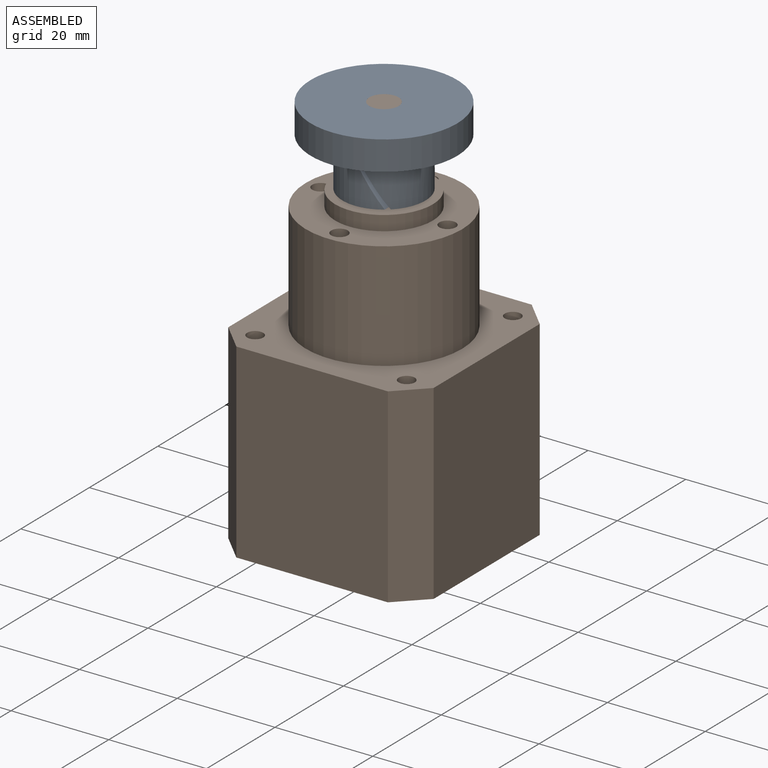
[diagram: assembled view]
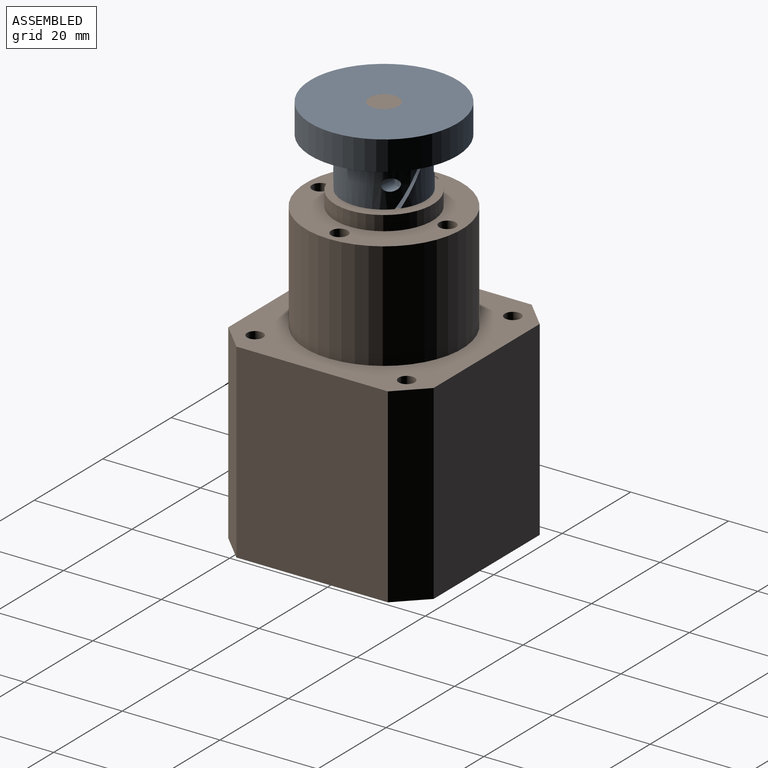
[diagram: assembled view, second angle]
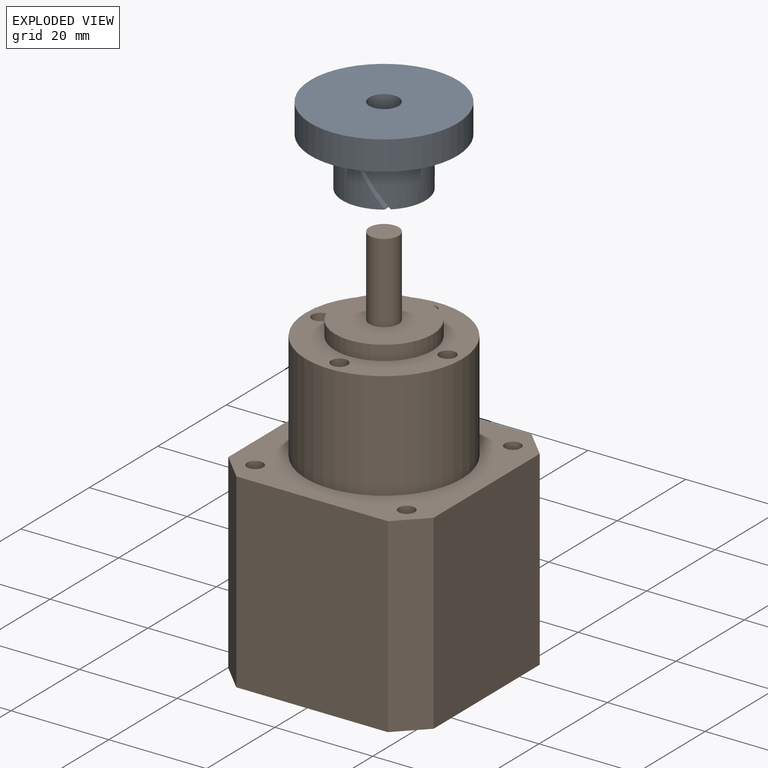
[diagram: exploded view]
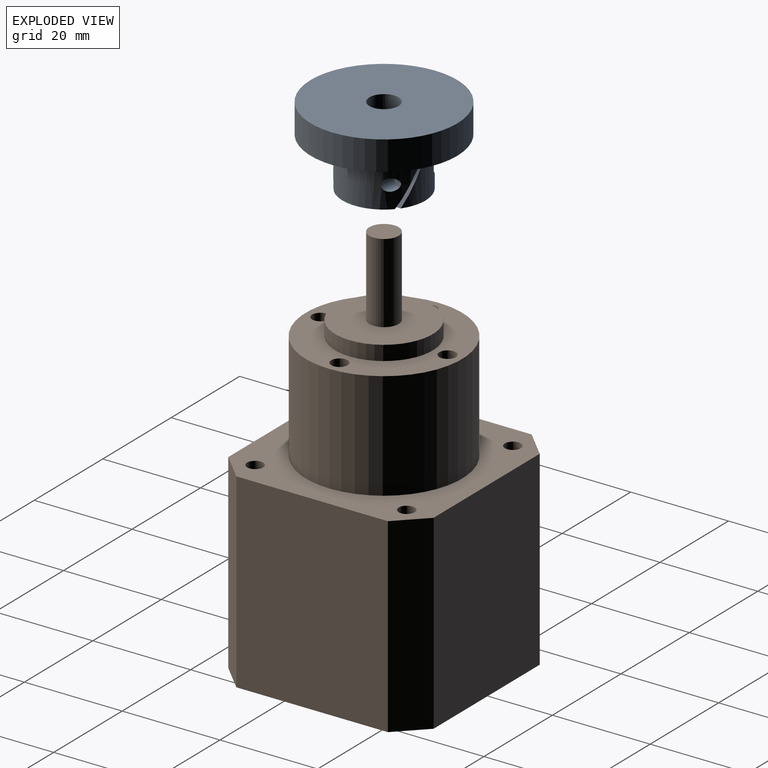
[diagram: exploded view, second angle]
ASSEMBLY  parts=2 mates=2
PART A: 29 faces, bbox 16.4x30.4x30.4 mm
  f0: cylinder r=2.15mm len=4.32mm, axis (0,0,-1), area 34.2mm2, adj f1,f9
  f1: plane 4.3x4.24mm, normal (0,0,1), area 7.4mm2, adj f0,f2,f3,f9
  f2: cone r=1.5mm half-angle=45deg, axis (0,0,1), area 1.6mm2, adj f1,f3,f28
  f3: cone r=1.5mm half-angle=45deg, axis (0,0,1), area 1.6mm2, adj f1,f2,f4
  f4: cylinder r=1.23mm len=6.21mm, axis (0,0,1), area 22.6mm2, adj f3,f5,f28
  f5: plane 17.45x9.05mm, normal (-0.5,0,-0.87), area 124.9mm2, adj f4,f6,f8,f20,f25,f26,f27,f28
  f6: cylinder r=3mm len=8.6mm, axis (-1,0,0), area 49.9mm2, adj f5,f7,f26
  f7: cylinder r=3mm len=16mm, axis (-1,0,0), area 149.5mm2, adj f6,f8,f16,f18,f19,f20,f21,f26
  f8: cylinder r=0.35mm len=5.56mm, axis (0,-1,0), area 6.1mm2, adj f5,f7,f9,f10,f13,f16
  f9: cylinder r=8.5mm len=17mm, axis (-1,0,0), area 242.9mm2, adj f0,f1,f8,f10,f18,f19,f20,f24
  f10: cylinder r=8.5mm len=17mm, axis (-1,0,0), area 185.3mm2, adj f8,f9,f11,f12,f13,f14,f15,f17
  f11: cylinder r=1.23mm len=4.05mm, axis (0,0,1), area 9.8mm2, adj f10,f12,f13
  f12: cylinder r=1.23mm len=4.77mm, axis (0,0,1), area 12.9mm2, adj f10,f11,f13
  f13: plane 17.24x9.25mm, normal (0.5,0,0.87), area 130.5mm2, adj f8,f10,f11,f12,f14,f15,f16
  f14: plane 12.48x2.73mm, normal (1,0,0), area 23.5mm2, adj f10,f13
  f15: plane 15.82x7.69mm, normal (-1,0,0), area 78.3mm2, adj f10,f13,f16,f17
  f16: cylinder r=3mm len=11.21mm, axis (-1,0,0), area 82.9mm2, adj f7,f8,f13,f15,f17,f18,f21
  f17: cylinder r=0.35mm len=4.94mm, axis (0,-0.87,0.5), area 6mm2, adj f10,f15,f16,f18
  f18: plane 15.86x12.75mm, normal (1,0,0), area 99.4mm2, adj f7,f9,f10,f16,f17,f19
  f19: cylinder r=0.35mm len=4.94mm, axis (0,-0.87,0.5), area 6mm2, adj f7,f9,f18,f20
  f20: plane 5.9x4.25mm, normal (-1,0,0), area 16.6mm2, adj f5,f7,f9,f19
  f21: plane 30x30mm, normal (-1,0,0), area 678.6mm2, adj f7,f16,f22,f23
  f22: cylinder r=15mm len=30mm, axis (-1,0,0), area 282.7mm2, adj f21,f23,f24
  f23: cylinder r=15mm len=30mm, axis (-1,0,0), area 282.7mm2, adj f21,f22,f24
  f24: plane 30x30mm, normal (1,0,0), area 479.9mm2, adj f9,f10,f22,f23
  f25: cylinder r=8.5mm len=8.6mm, axis (-1,0,0), area 22.8mm2, adj f5,f9,f26
  f26: plane 17x13.47mm, normal (1,0,0), area 164.5mm2, adj f5,f6,f7,f9,f25,f27
  f27: cylinder r=8.5mm len=8.6mm, axis (-1,0,0), area 22.8mm2, adj f5,f9,f26
  f28: cylinder r=1.23mm len=5.5mm, axis (0,0,1), area 19.5mm2, adj f2,f4,f5
PART B: 32 faces, bbox 42x42x80.4 mm
  f0: plane 39x31mm, normal (0,1,0), area 1209mm2, adj f4,f5,f14,f15
  f1: plane 39x31mm, normal (-1,0,0), area 1209mm2, adj f4,f5,f12,f15
  f2: plane 39x31mm, normal (0,-1,0), area 1209mm2, adj f4,f5,f12,f13
  f3: plane 39x31mm, normal (1,0,0), area 1209mm2, adj f4,f5,f13,f14
  f4: plane 42x42mm, normal (0,0,1), area 865mm2, adj f0,f1,f2,f3,f6,f12,f13,f14
  f5: plane 42x42mm, normal (0,0,-1), area 1703.5mm2, adj f0,f1,f2,f3,f12,f13,f14,f15
  f6: cylinder r=16mm len=32mm, axis (0,0,-1), area 2221.7mm2, adj f4,f7
  f7: plane 32x32mm, normal (0,0,1), area 453.8mm2, adj f6,f8,f25,f27,f29,f31
  f8: cylinder r=10mm len=20mm, axis (0,0,-1), area 188.5mm2, adj f7,f9
  f9: plane 20x20mm, normal (0,0,1), area 285.9mm2, adj f8,f10
  f10: cylinder r=3mm len=16.3mm, axis (0,0,-1), area 307.2mm2, adj f9,f11
  f11: plane 6x6mm, normal (0,0,1), area 28.3mm2, adj f10
  f12: plane 39x5.5mm, normal (-0.71,-0.71,0), area 303.3mm2, adj f1,f2,f4,f5
  f13: plane 39x5.5mm, normal (0.71,-0.71,0), area 303.3mm2, adj f2,f3,f4,f5
  f14: plane 39x5.5mm, normal (0.71,0.71,0), area 303.3mm2, adj f0,f3,f4,f5
  f15: plane 39x5.5mm, normal (-0.71,0.71,0), area 303.3mm2, adj f0,f1,f4,f5
  f16: cone r=0mm half-angle=59deg, axis (0,0,1), area 10mm2, adj f17
  f17: cylinder r=1.65mm len=7mm, axis (0,0,1), area 72.6mm2, adj f4,f16
  f18: cone r=0mm half-angle=59deg, axis (0,0,1), area 10mm2, adj f19
  f19: cylinder r=1.65mm len=7mm, axis (0,0,1), area 72.6mm2, adj f4,f18
  f20: cone r=0mm half-angle=59deg, axis (0,0,1), area 10mm2, adj f21
  f21: cylinder r=1.65mm len=7mm, axis (0,0,1), area 72.6mm2, adj f4,f20
  f22: cone r=0mm half-angle=59deg, axis (0,0,1), area 10mm2, adj f23
  f23: cylinder r=1.65mm len=7mm, axis (0,0,1), area 72.6mm2, adj f4,f22
  f24: cone r=0mm half-angle=59deg, axis (0,0,1), area 10.6mm2, adj f25
  f25: cylinder r=1.7mm len=7mm, axis (0,0,1), area 74.8mm2, adj f7,f24
  f26: cone r=0mm half-angle=59deg, axis (0,0,1), area 10.6mm2, adj f27
  f27: cylinder r=1.7mm len=7mm, axis (0,0,1), area 74.8mm2, adj f7,f26
  f28: cone r=0mm half-angle=59deg, axis (0,0,1), area 10.6mm2, adj f29
  f29: cylinder r=1.7mm len=7mm, axis (0,0,1), area 74.8mm2, adj f7,f28
  f30: cone r=0mm half-angle=59deg, axis (0,0,1), area 10.6mm2, adj f31
  f31: cylinder r=1.7mm len=7mm, axis (0,0,1), area 74.8mm2, adj f7,f30
PLACE A rot(axis=(0.71,0,-0.71),180deg) t=(-17.05,27.63,96.26)mm
PLACE B t=(-17.05,27.63,15.86)mm fixed
MATE slider B.f10 <-> A.f6  axis (0,0,1) through (-17.05,27.63,96.26)mm
MATE revolute B.f10 <-> A.f6  axis (0,0,1) through (-17.05,27.63,96.26)mm
